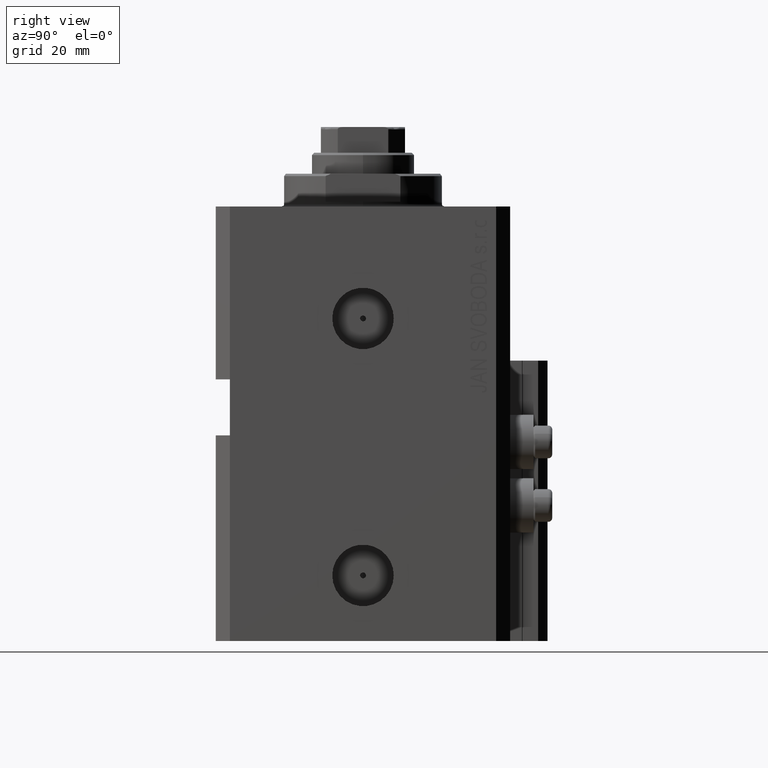
[diagram: clean part render]
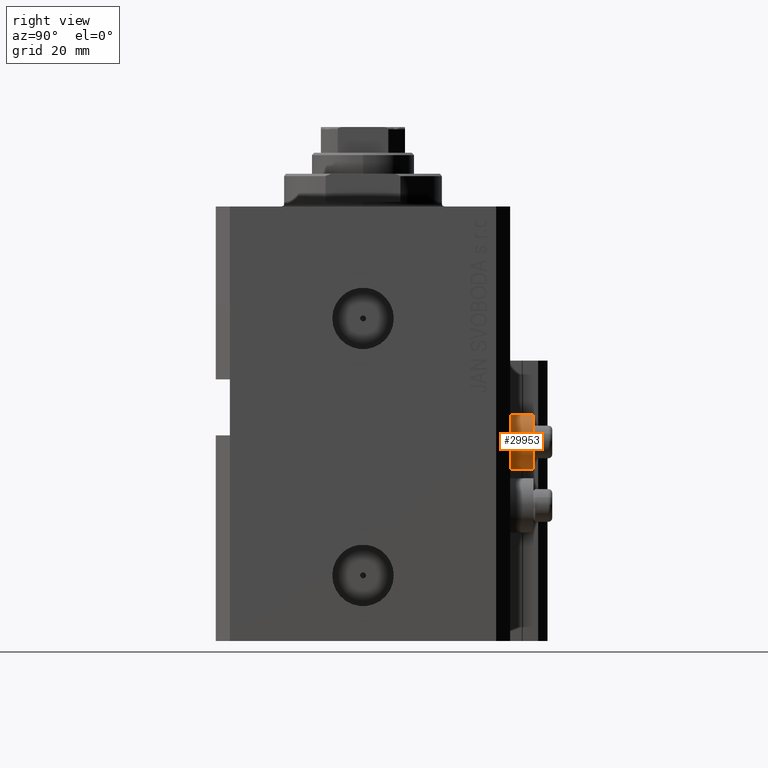
[diagram: same view with one face highlighted and labeled with its STEP entity id]
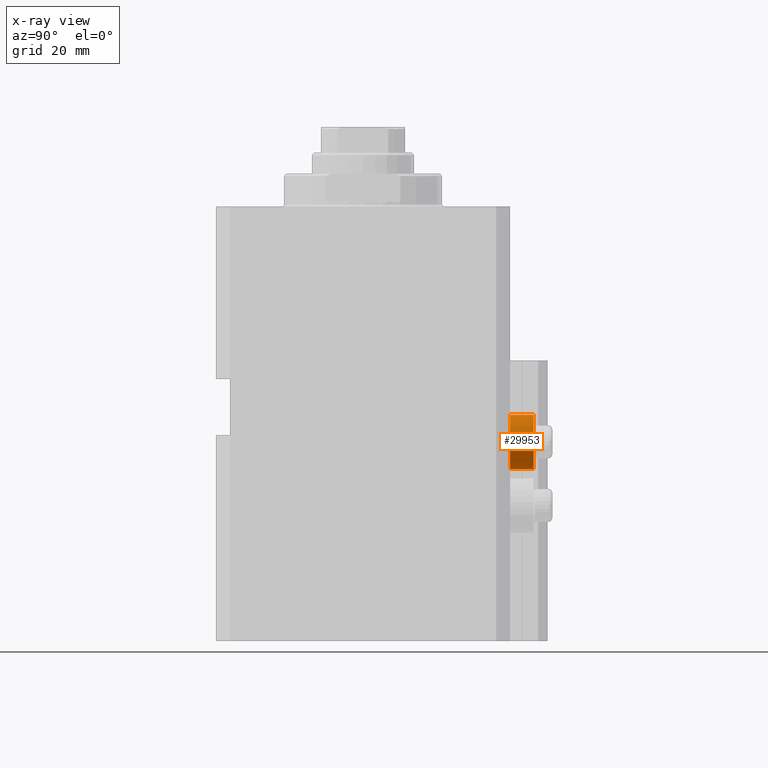
[diagram: x-ray of the same camera — body ghosted, the highlighted face saturated]
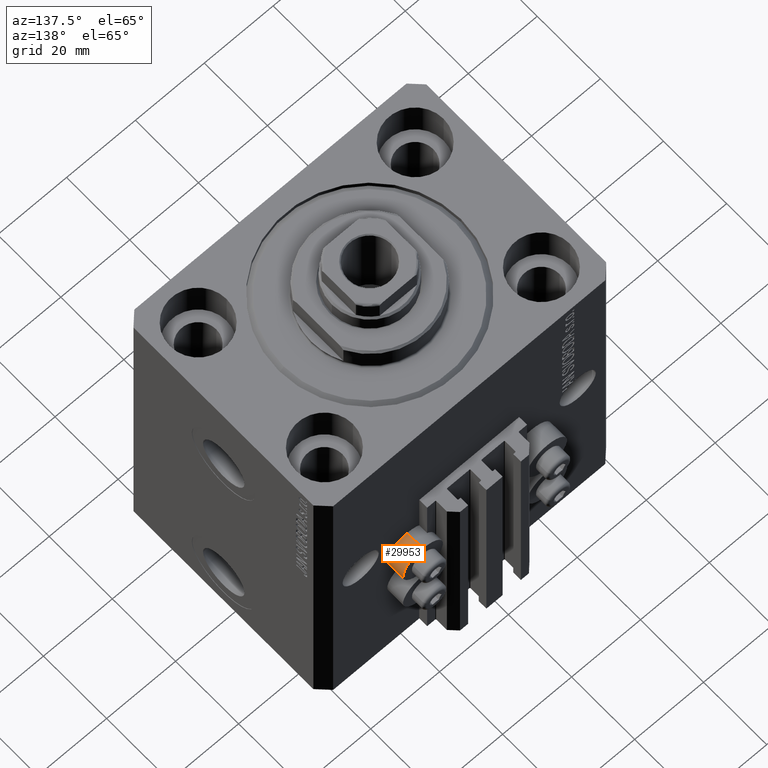
[diagram: same view with one face highlighted and labeled with its STEP entity id]
A machine part, right view. The second image highlights one B-rep face of the part: STEP entity #29953.
The next image is the same camera in x-ray: the body ghosted, the highlighted face saturated — about 0% of this face is hidden behind the body in this view.
A second angle (auxiliary view) of the same face is appended — the face is thin or edge-on in the first view.
In plain terms, the highlighted cylindrical surface (edge-blend (fillet) strip) has radius 5.8 mm, axis along (0, 1, 0).
Its self-contained STEP definition (entity closure, byte-faithful):
#1402 = DIRECTION ( 'NONE',  ( 0.000000000000000000, 0.000000000000000000, 1.000000000000000000 ) ) ;
#1503 = CARTESIAN_POINT ( 'NONE',  ( 18.00000000000000355, 36.49999999996099120, -56.20000000000000284 ) ) ;
#2550 = DIRECTION ( 'NONE',  ( 0.000000000000000000, 0.000000000000000000, 1.000000000000000000 ) ) ;
#2695 = DIRECTION ( 'NONE',  ( -0.000000000000000000, -1.000000000000000000, -0.000000000000000000 ) ) ;
#3372 = VERTEX_POINT ( 'NONE', #24555 ) ;
#3768 = EDGE_CURVE ( 'NONE', #38604, #3372, #34502, .T. ) ;
#6161 = DIRECTION ( 'NONE',  ( -0.000000000000000000, -1.000000000000000000, -0.000000000000000000 ) ) ;
#10560 = CARTESIAN_POINT ( 'NONE',  ( 18.00000000000000355, 31.50000000000000000, -56.20000000000000284 ) ) ;
#11092 = EDGE_CURVE ( 'NONE', #29341, #38604, #16082, .T. ) ;
#12938 = DIRECTION ( 'NONE',  ( 0.000000000000000000, 1.000000000000000000, 0.000000000000000000 ) ) ;
#14075 = ORIENTED_EDGE ( 'NONE', *, *, #43605, .T. ) ;
#16082 = CIRCLE ( 'NONE', #33792, 5.799999999999999822 ) ;
#16558 = FACE_OUTER_BOUND ( 'NONE', #17221, .T. ) ;
#17221 = EDGE_LOOP ( 'NONE', ( #23123, #22625, #14075, #38109 ) ) ;
#20976 = CARTESIAN_POINT ( 'NONE',  ( 18.00000000000000355, 36.49999999996099120, -56.20000000000000284 ) ) ;
#21210 = DIRECTION ( 'NONE',  ( 0.000000000000000000, 0.000000000000000000, 1.000000000000000000 ) ) ;
#22625 = ORIENTED_EDGE ( 'NONE', *, *, #46924, .T. ) ;
#23123 = ORIENTED_EDGE ( 'NONE', *, *, #11092, .F. ) ;
#24331 = DIRECTION ( 'NONE',  ( 0.000000000000000000, 1.000000000000000000, 0.000000000000000000 ) ) ;
#24555 = CARTESIAN_POINT ( 'NONE',  ( 18.00000000000000355, 36.49999999996099120, -44.60000000000000142 ) ) ;
#27031 = CARTESIAN_POINT ( 'NONE',  ( 18.00000000000000355, 36.49999999996099120, -44.60000000000000142 ) ) ;
#28774 = AXIS2_PLACEMENT_3D ( 'NONE', #45678, #12938, #1402 ) ;
#28890 = LINE ( 'NONE', #20976, #31500 ) ;
#29341 = VERTEX_POINT ( 'NONE', #10560 ) ;
#29861 = AXIS2_PLACEMENT_3D ( 'NONE', #32295, #2695, #21210 ) ;
#29953 = ADVANCED_FACE ( 'NONE', ( #16558 ), #44963, .T. ) ;
#31371 = DIRECTION ( 'NONE',  ( 0.000000000000000000, 1.000000000000000000, 0.000000000000000000 ) ) ;
#31500 = VECTOR ( 'NONE', #24331, 1000.000000000000000 ) ;
#32295 = CARTESIAN_POINT ( 'NONE',  ( 18.00000000000000355, 36.49999999996099120, -50.39999999999999858 ) ) ;
#33691 = CIRCLE ( 'NONE', #29861, 5.799999999999999822 ) ;
#33792 = AXIS2_PLACEMENT_3D ( 'NONE', #40063, #6161, #2550 ) ;
#34502 = LINE ( 'NONE', #27031, #44302 ) ;
#38109 = ORIENTED_EDGE ( 'NONE', *, *, #3768, .F. ) ;
#38604 = VERTEX_POINT ( 'NONE', #41258 ) ;
#40014 = VERTEX_POINT ( 'NONE', #1503 ) ;
#40063 = CARTESIAN_POINT ( 'NONE',  ( 18.00000000000000355, 31.50000000000000000, -50.39999999999999858 ) ) ;
#41258 = CARTESIAN_POINT ( 'NONE',  ( 18.00000000000000355, 31.50000000000000000, -44.60000000000000142 ) ) ;
#43605 = EDGE_CURVE ( 'NONE', #40014, #3372, #33691, .T. ) ;
#44302 = VECTOR ( 'NONE', #31371, 1000.000000000000000 ) ;
#44963 = CYLINDRICAL_SURFACE ( 'NONE', #28774, 5.799999999999999822 ) ;
#45678 = CARTESIAN_POINT ( 'NONE',  ( 18.00000000000000355, 36.49999999996099120, -50.39999999999999858 ) ) ;
#46924 = EDGE_CURVE ( 'NONE', #29341, #40014, #28890, .T. ) ;